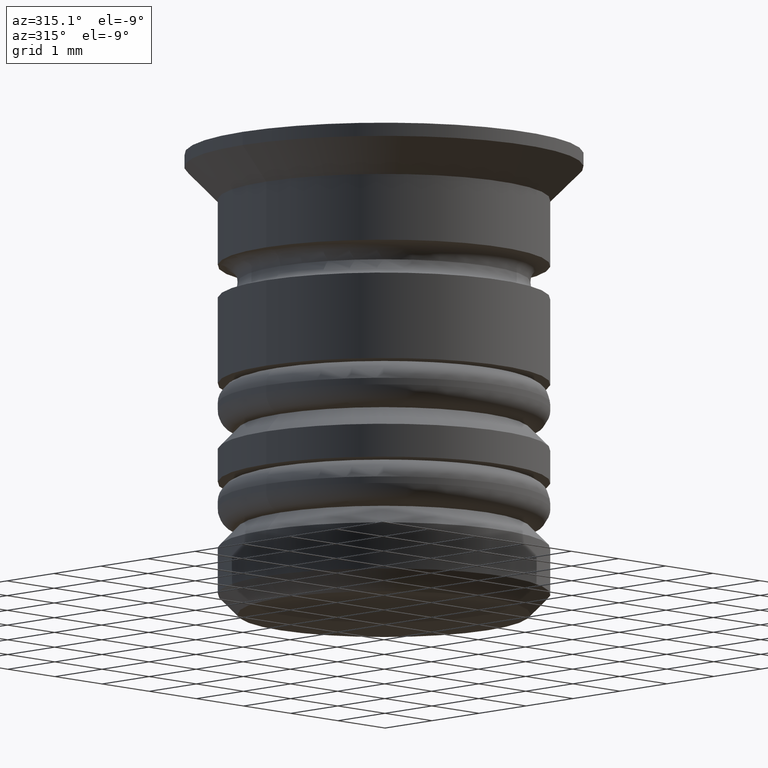
[diagram: clean part render]
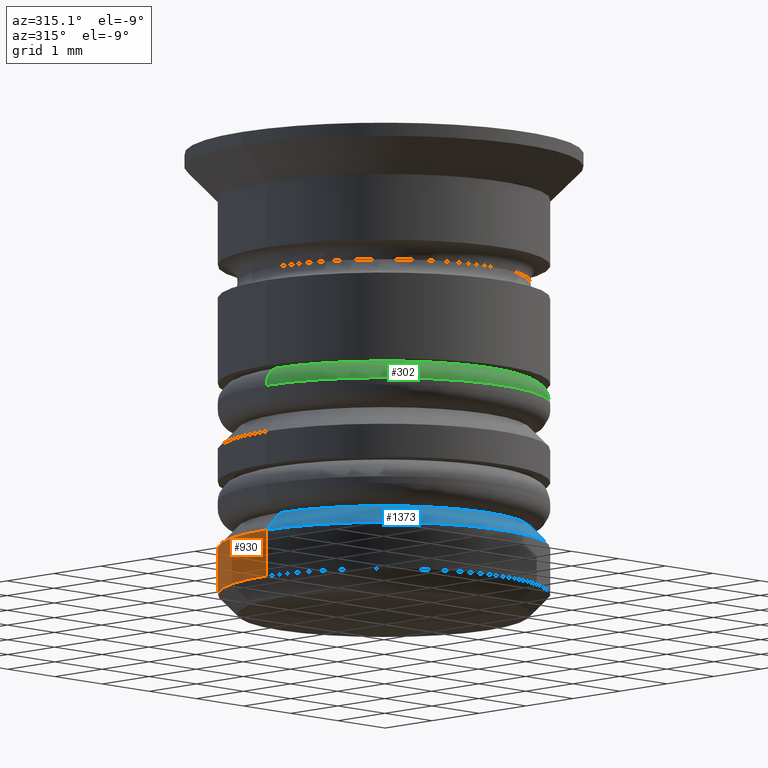
[diagram: same view with three faces highlighted in distinct colors, each labeled with its STEP entity id]
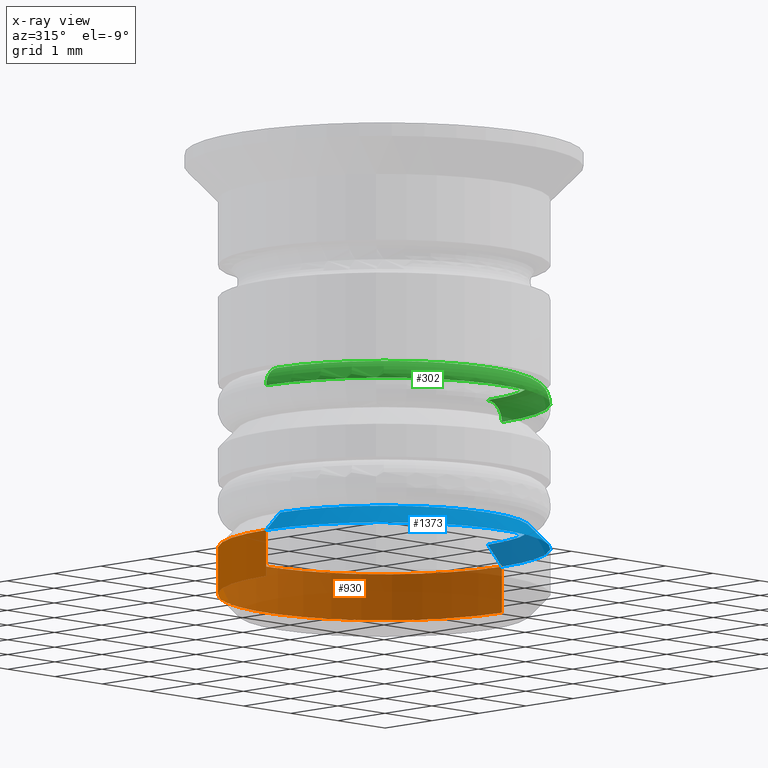
[diagram: x-ray of the same camera — body ghosted, the three highlighted faces saturated]
A machine part, auxiliary view with three faces highlighted in distinct colors.
The next image is the same camera in x-ray (body ghosted, the three faces saturated) — at least one of them is partly hidden behind the body in this view.
Their STEP definitions:

[orange] entity #930 — the highlighted cylindrical surface (partial cylindrical patch) has radius 2.5 mm, axis along (-0, -0, 1).
#79 = CARTESIAN_POINT ( 'NONE',  ( 0.000000000000000000, 0.000000000000000000, 0.000000000000000000 ) ) ;
#115 = AXIS2_PLACEMENT_3D ( 'NONE', #79, #648, #570 ) ;
#224 = FACE_OUTER_BOUND ( 'NONE', #1572, .T. ) ;
#421 = VERTEX_POINT ( 'NONE', #1177 ) ;
#525 = EDGE_CURVE ( 'NONE', #421, #1132, #1663, .T. ) ;
#570 = DIRECTION ( 'NONE',  ( 1.000000000000000000, 0.000000000000000000, 0.000000000000000000 ) ) ;
#598 = VERTEX_POINT ( 'NONE', #1111 ) ;
#648 = DIRECTION ( 'NONE',  ( -0.000000000000000000, -0.000000000000000000, 1.000000000000000000 ) ) ;
#673 = DIRECTION ( 'NONE',  ( -0.000000000000000000, -0.000000000000000000, 1.000000000000000000 ) ) ;
#674 = CIRCLE ( 'NONE', #948, 2.500000000000001776 ) ;
#688 = ORIENTED_EDGE ( 'NONE', *, *, #1639, .T. ) ;
#722 = DIRECTION ( 'NONE',  ( 0.000000000000000000, 0.000000000000000000, -1.000000000000000000 ) ) ;
#786 = CYLINDRICAL_SURFACE ( 'NONE', #115, 2.500000000000001776 ) ;
#820 = VERTEX_POINT ( 'NONE', #1217 ) ;
#893 = CIRCLE ( 'NONE', #1273, 2.500000000000001776 ) ;
#930 = ADVANCED_FACE ( 'NONE', ( #224 ), #786, .T. ) ;
#948 = AXIS2_PLACEMENT_3D ( 'NONE', #1179, #722, #1045 ) ;
#973 = DIRECTION ( 'NONE',  ( -0.000000000000000000, -0.000000000000000000, 1.000000000000000000 ) ) ;
#1006 = VECTOR ( 'NONE', #973, 1000.000000000000000 ) ;
#1045 = DIRECTION ( 'NONE',  ( -1.000000000000000000, 0.000000000000000000, 0.000000000000000000 ) ) ;
#1111 = CARTESIAN_POINT ( 'NONE',  ( -2.500000000000001776, 3.061616997868385606E-16, -6.699999999999999289 ) ) ;
#1132 = VERTEX_POINT ( 'NONE', #1439 ) ;
#1164 = ORIENTED_EDGE ( 'NONE', *, *, #1316, .T. ) ;
#1177 = CARTESIAN_POINT ( 'NONE',  ( 2.500000000000001776, 0.000000000000000000, -6.699999999999999289 ) ) ;
#1179 = CARTESIAN_POINT ( 'NONE',  ( 0.000000000000000000, 0.000000000000000000, -6.000000000000007105 ) ) ;
#1217 = CARTESIAN_POINT ( 'NONE',  ( -2.500000000000001776, 3.061616997868385606E-16, -6.000000000000007105 ) ) ;
#1265 = LINE ( 'NONE', #1423, #1006 ) ;
#1273 = AXIS2_PLACEMENT_3D ( 'NONE', #1478, #1767, #1359 ) ;
#1295 = ORIENTED_EDGE ( 'NONE', *, *, #525, .F. ) ;
#1316 = EDGE_CURVE ( 'NONE', #421, #598, #893, .T. ) ;
#1357 = CARTESIAN_POINT ( 'NONE',  ( 2.500000000000001776, 0.000000000000000000, 0.000000000000000000 ) ) ;
#1359 = DIRECTION ( 'NONE',  ( -1.000000000000000000, 0.000000000000000000, 0.000000000000000000 ) ) ;
#1423 = CARTESIAN_POINT ( 'NONE',  ( -2.500000000000001776, 3.061616997868385606E-16, 0.000000000000000000 ) ) ;
#1439 = CARTESIAN_POINT ( 'NONE',  ( 2.500000000000001776, 0.000000000000000000, -6.000000000000007105 ) ) ;
#1442 = ORIENTED_EDGE ( 'NONE', *, *, #1694, .T. ) ;
#1478 = CARTESIAN_POINT ( 'NONE',  ( 0.000000000000000000, 0.000000000000000000, -6.699999999999999289 ) ) ;
#1572 = EDGE_LOOP ( 'NONE', ( #1164, #1442, #688, #1295 ) ) ;
#1639 = EDGE_CURVE ( 'NONE', #820, #1132, #674, .T. ) ;
#1663 = LINE ( 'NONE', #1357, #1802 ) ;
#1694 = EDGE_CURVE ( 'NONE', #598, #820, #1265, .T. ) ;
#1767 = DIRECTION ( 'NONE',  ( -0.000000000000000000, -0.000000000000000000, 1.000000000000000000 ) ) ;
#1802 = VECTOR ( 'NONE', #673, 1000.000000000000000 ) ;

[blue] entity #1373 — the highlighted conical surface has half-angle 45 deg.
#107 = CARTESIAN_POINT ( 'NONE',  ( 1.999999999999993117, 2.449293598294698033E-16, -5.500000000000003553 ) ) ;
#111 = AXIS2_PLACEMENT_3D ( 'NONE', #1399, #976, #1679 ) ;
#153 = EDGE_LOOP ( 'NONE', ( #1763, #875, #1004, #889 ) ) ;
#205 = VECTOR ( 'NONE', #367, 1000.000000000000000 ) ;
#207 = CARTESIAN_POINT ( 'NONE',  ( 0.000000000000000000, 0.000000000000000000, -5.700000000000009948 ) ) ;
#211 = FACE_OUTER_BOUND ( 'NONE', #153, .T. ) ;
#240 = LINE ( 'NONE', #1792, #205 ) ;
#293 = AXIS2_PLACEMENT_3D ( 'NONE', #207, #488, #1055 ) ;
#367 = DIRECTION ( 'NONE',  ( -0.7071067811865507924, 0.000000000000000000, -0.7071067811865441310 ) ) ;
#456 = VERTEX_POINT ( 'NONE', #503 ) ;
#479 = EDGE_CURVE ( 'NONE', #456, #820, #240, .T. ) ;
#488 = DIRECTION ( 'NONE',  ( -0.000000000000000000, -0.000000000000000000, 1.000000000000000000 ) ) ;
#503 = CARTESIAN_POINT ( 'NONE',  ( -2.200000000000001954, 2.694222958124179472E-16, -5.700000000000009948 ) ) ;
#504 = EDGE_CURVE ( 'NONE', #1070, #1132, #960, .T. ) ;
#594 = EDGE_CURVE ( 'NONE', #1132, #820, #1619, .T. ) ;
#643 = DIRECTION ( 'NONE',  ( 0.7071067811865507924, 8.659560562354974766E-17, -0.7071067811865441310 ) ) ;
#703 = VECTOR ( 'NONE', #643, 1000.000000000000000 ) ;
#774 = CARTESIAN_POINT ( 'NONE',  ( 0.000000000000000000, 0.000000000000000000, -5.500000000000003553 ) ) ;
#820 = VERTEX_POINT ( 'NONE', #1217 ) ;
#875 = ORIENTED_EDGE ( 'NONE', *, *, #1653, .F. ) ;
#889 = ORIENTED_EDGE ( 'NONE', *, *, #594, .F. ) ;
#960 = LINE ( 'NONE', #107, #703 ) ;
#976 = DIRECTION ( 'NONE',  ( 0.000000000000000000, 0.000000000000000000, -1.000000000000000000 ) ) ;
#1004 = ORIENTED_EDGE ( 'NONE', *, *, #479, .T. ) ;
#1055 = DIRECTION ( 'NONE',  ( -1.000000000000000000, 0.000000000000000000, 0.000000000000000000 ) ) ;
#1070 = VERTEX_POINT ( 'NONE', #1386 ) ;
#1094 = CIRCLE ( 'NONE', #293, 2.200000000000001954 ) ;
#1132 = VERTEX_POINT ( 'NONE', #1439 ) ;
#1217 = CARTESIAN_POINT ( 'NONE',  ( -2.500000000000001776, 3.061616997868385606E-16, -6.000000000000007105 ) ) ;
#1344 = DIRECTION ( 'NONE',  ( 0.000000000000000000, 0.000000000000000000, -1.000000000000000000 ) ) ;
#1373 = ADVANCED_FACE ( 'NONE', ( #211 ), #1808, .T. ) ;
#1386 = CARTESIAN_POINT ( 'NONE',  ( 2.200000000000001954, 0.000000000000000000, -5.700000000000009948 ) ) ;
#1399 = CARTESIAN_POINT ( 'NONE',  ( 0.000000000000000000, 0.000000000000000000, -6.000000000000007105 ) ) ;
#1439 = CARTESIAN_POINT ( 'NONE',  ( 2.500000000000001776, 0.000000000000000000, -6.000000000000007105 ) ) ;
#1619 = CIRCLE ( 'NONE', #111, 2.500000000000001776 ) ;
#1624 = AXIS2_PLACEMENT_3D ( 'NONE', #774, #1344, #1632 ) ;
#1632 = DIRECTION ( 'NONE',  ( -1.000000000000000000, 0.000000000000000000, 0.000000000000000000 ) ) ;
#1653 = EDGE_CURVE ( 'NONE', #456, #1070, #1094, .T. ) ;
#1679 = DIRECTION ( 'NONE',  ( -1.000000000000000000, 0.000000000000000000, 0.000000000000000000 ) ) ;
#1763 = ORIENTED_EDGE ( 'NONE', *, *, #504, .F. ) ;
#1792 = CARTESIAN_POINT ( 'NONE',  ( -1.999999999999993117, 0.000000000000000000, -5.500000000000003553 ) ) ;
#1808 = CONICAL_SURFACE ( 'NONE', #1624, 1.999999999999993117, 0.7853981633974530530 ) ;

[green] entity #302 — the highlighted toroidal blend (fillet) surface has major radius 2.2 mm and minor (blend) radius 0.3 mm.
#88 = CARTESIAN_POINT ( 'NONE',  ( 0.000000000000000000, 0.000000000000000000, -3.500000000000003997 ) ) ;
#158 = AXIS2_PLACEMENT_3D ( 'NONE', #344, #1615, #1443 ) ;
#189 = CARTESIAN_POINT ( 'NONE',  ( 2.500000000000001776, 0.000000000000000000, -3.800000000000003819 ) ) ;
#229 = ORIENTED_EDGE ( 'NONE', *, *, #850, .F. ) ;
#230 = DIRECTION ( 'NONE',  ( 0.000000000000000000, 0.000000000000000000, -1.000000000000000000 ) ) ;
#231 = VERTEX_POINT ( 'NONE', #730 ) ;
#268 = CARTESIAN_POINT ( 'NONE',  ( -2.200000000000001954, 0.000000000000000000, -3.800000000000003819 ) ) ;
#271 = EDGE_CURVE ( 'NONE', #321, #1100, #392, .T. ) ;
#302 = ADVANCED_FACE ( 'NONE', ( #1168 ), #1520, .T. ) ;
#321 = VERTEX_POINT ( 'NONE', #1318 ) ;
#322 = ORIENTED_EDGE ( 'NONE', *, *, #271, .F. ) ;
#344 = CARTESIAN_POINT ( 'NONE',  ( 0.000000000000000000, 0.000000000000000000, -3.800000000000003819 ) ) ;
#392 = CIRCLE ( 'NONE', #1658, 0.2999999999999999334 ) ;
#417 = DIRECTION ( 'NONE',  ( -0.000000000000000000, -1.000000000000000000, -0.000000000000000000 ) ) ;
#602 = EDGE_CURVE ( 'NONE', #231, #1025, #1149, .T. ) ;
#608 = ORIENTED_EDGE ( 'NONE', *, *, #1332, .F. ) ;
#694 = EDGE_LOOP ( 'NONE', ( #322, #608, #1791, #229 ) ) ;
#698 = DIRECTION ( 'NONE',  ( -1.000000000000000000, -1.224646799147353207E-16, 0.000000000000000000 ) ) ;
#730 = CARTESIAN_POINT ( 'NONE',  ( -2.200000000000001954, 0.000000000000000000, -3.500000000000003997 ) ) ;
#850 = EDGE_CURVE ( 'NONE', #1100, #1025, #891, .T. ) ;
#891 = CIRCLE ( 'NONE', #1594, 2.500000000000001776 ) ;
#944 = DIRECTION ( 'NONE',  ( -1.000000000000000000, 0.000000000000000000, 0.000000000000000000 ) ) ;
#954 = CIRCLE ( 'NONE', #1186, 2.200000000000001954 ) ;
#995 = CARTESIAN_POINT ( 'NONE',  ( -2.500000000000001776, 3.061616997868385606E-16, -3.800000000000003819 ) ) ;
#1025 = VERTEX_POINT ( 'NONE', #995 ) ;
#1065 = DIRECTION ( 'NONE',  ( -0.000000000000000000, -0.000000000000000000, 1.000000000000000000 ) ) ;
#1100 = VERTEX_POINT ( 'NONE', #189 ) ;
#1118 = DIRECTION ( 'NONE',  ( 0.000000000000000000, 0.000000000000000000, -1.000000000000000000 ) ) ;
#1149 = CIRCLE ( 'NONE', #1775, 0.2999999999999999334 ) ;
#1168 = FACE_OUTER_BOUND ( 'NONE', #694, .T. ) ;
#1186 = AXIS2_PLACEMENT_3D ( 'NONE', #88, #1065, #944 ) ;
#1318 = CARTESIAN_POINT ( 'NONE',  ( 2.200000000000001954, 2.877919977996282293E-16, -3.500000000000003997 ) ) ;
#1332 = EDGE_CURVE ( 'NONE', #231, #321, #954, .T. ) ;
#1406 = DIRECTION ( 'NONE',  ( -1.224646799147353207E-16, 1.000000000000000000, 0.000000000000000000 ) ) ;
#1443 = DIRECTION ( 'NONE',  ( -1.000000000000000000, 0.000000000000000000, 0.000000000000000000 ) ) ;
#1499 = CARTESIAN_POINT ( 'NONE',  ( 0.000000000000000000, 0.000000000000000000, -3.800000000000003819 ) ) ;
#1508 = DIRECTION ( 'NONE',  ( -1.000000000000000000, 0.000000000000000000, 0.000000000000000000 ) ) ;
#1520 = TOROIDAL_SURFACE ( 'NONE', #158, 2.200000000000001954, 0.2999999999999999889 ) ;
#1548 = CARTESIAN_POINT ( 'NONE',  ( 2.200000000000001954, 2.694222958124179472E-16, -3.800000000000003819 ) ) ;
#1594 = AXIS2_PLACEMENT_3D ( 'NONE', #1499, #230, #1508 ) ;
#1615 = DIRECTION ( 'NONE',  ( 0.000000000000000000, 0.000000000000000000, -1.000000000000000000 ) ) ;
#1658 = AXIS2_PLACEMENT_3D ( 'NONE', #1548, #1406, #698 ) ;
#1775 = AXIS2_PLACEMENT_3D ( 'NONE', #268, #417, #1118 ) ;
#1791 = ORIENTED_EDGE ( 'NONE', *, *, #602, .T. ) ;